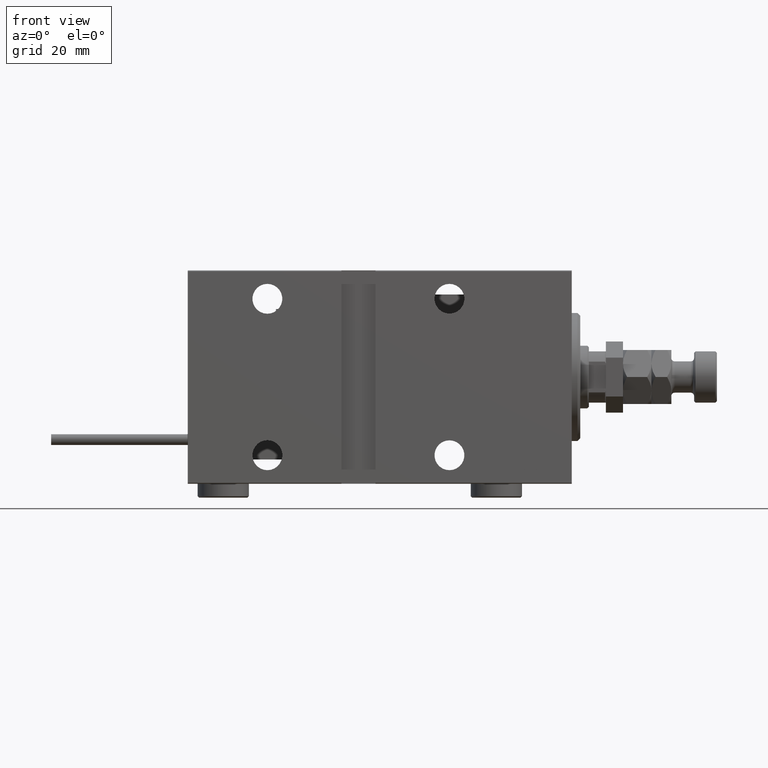
[diagram: clean part render]
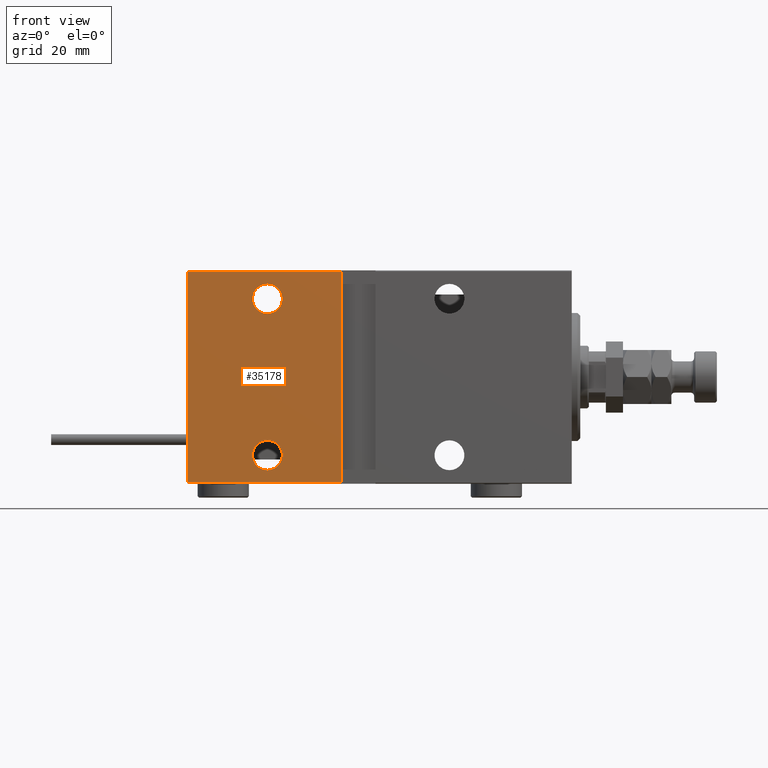
[diagram: same view with one face highlighted and labeled with its STEP entity id]
A machine part, front view. The second image highlights one B-rep face of the part: STEP entity #35178.
In plain terms, the highlighted planar face has unit normal (-0, 1, -0).
Its self-contained STEP definition (entity closure, byte-faithful):
#339 = AXIS2_PLACEMENT_3D ( 'NONE', #4203, #44625, #35800 ) ;
#1992 = CARTESIAN_POINT ( 'NONE',  ( 107.0000000000000142, 27.49999999999999645, 27.49999999999999289 ) ) ;
#2614 = ORIENTED_EDGE ( 'NONE', *, *, #9988, .F. ) ;
#2765 = CARTESIAN_POINT ( 'NONE',  ( 81.00000000000001421, 27.50000000000000355, -37.50000000000009237 ) ) ;
#3240 = EDGE_CURVE ( 'NONE', #4766, #50384, #24701, .T. ) ;
#3502 = VECTOR ( 'NONE', #19582, 1000.000000000000000 ) ;
#3670 = CARTESIAN_POINT ( 'NONE',  ( 107.0000000000000142, 27.49999999999999645, 32.74999999999999289 ) ) ;
#3806 = DIRECTION ( 'NONE',  ( 0.000000000000000000, -1.000000000000000000, -9.251858538542970348E-17 ) ) ;
#3972 = VERTEX_POINT ( 'NONE', #11504 ) ;
#4203 = CARTESIAN_POINT ( 'NONE',  ( 107.0000000000000142, 27.50000000000000355, -27.50000000000000711 ) ) ;
#4766 = VERTEX_POINT ( 'NONE', #3670 ) ;
#5523 = EDGE_CURVE ( 'NONE', #3972, #49125, #8544, .T. ) ;
#6366 = FACE_BOUND ( 'NONE', #42477, .T. ) ;
#6643 = DIRECTION ( 'NONE',  ( 0.000000000000000000, -1.000000000000000000, -9.251858538542970348E-17 ) ) ;
#6654 = EDGE_CURVE ( 'NONE', #50384, #4766, #10201, .T. ) ;
#6917 = CARTESIAN_POINT ( 'NONE',  ( 135.0000000000000000, 27.50000000000000355, -37.50000000000000711 ) ) ;
#7572 = CARTESIAN_POINT ( 'NONE',  ( 107.0000000000000142, 27.49999999999999645, 27.49999999999999289 ) ) ;
#8151 = CARTESIAN_POINT ( 'NONE',  ( 107.0000000000000142, 27.50000000000000355, -32.75000000000000711 ) ) ;
#8531 = AXIS2_PLACEMENT_3D ( 'NONE', #7572, #3806, #16402 ) ;
#8544 = LINE ( 'NONE', #33158, #13849 ) ;
#8896 = CIRCLE ( 'NONE', #339, 5.250000000000000888 ) ;
#9122 = VERTEX_POINT ( 'NONE', #20885 ) ;
#9988 = EDGE_CURVE ( 'NONE', #3972, #52504, #11019, .T. ) ;
#10201 = CIRCLE ( 'NONE', #8531, 5.250000000000004441 ) ;
#10666 = FACE_BOUND ( 'NONE', #29775, .T. ) ;
#11019 = LINE ( 'NONE', #31331, #3502 ) ;
#11504 = CARTESIAN_POINT ( 'NONE',  ( 135.0000000000000000, 27.50000000000000355, -37.19999999999999574 ) ) ;
#12384 = LINE ( 'NONE', #45031, #25184 ) ;
#12799 = ORIENTED_EDGE ( 'NONE', *, *, #3240, .T. ) ;
#13205 = AXIS2_PLACEMENT_3D ( 'NONE', #6917, #6643, #26431 ) ;
#13849 = VECTOR ( 'NONE', #31899, 1000.000000000000000 ) ;
#14049 = ORIENTED_EDGE ( 'NONE', *, *, #34294, .T. ) ;
#16402 = DIRECTION ( 'NONE',  ( 0.000000000000000000, 0.000000000000000000, -1.000000000000000000 ) ) ;
#19582 = DIRECTION ( 'NONE',  ( 0.000000000000000000, -9.251858538542970348E-17, 1.000000000000000000 ) ) ;
#19627 = DIRECTION ( 'NONE',  ( 1.850371707708591851E-16, 9.251858538542959255E-17, -1.000000000000000000 ) ) ;
#20063 = ORIENTED_EDGE ( 'NONE', *, *, #36051, .T. ) ;
#20857 = VERTEX_POINT ( 'NONE', #8151 ) ;
#20885 = CARTESIAN_POINT ( 'NONE',  ( 81.00000000000000000, 27.49999999999999645, 37.20000000000003126 ) ) ;
#22182 = DIRECTION ( 'NONE',  ( 0.000000000000000000, -1.000000000000000000, -9.251858538542970348E-17 ) ) ;
#24701 = CIRCLE ( 'NONE', #41796, 5.250000000000004441 ) ;
#25184 = VECTOR ( 'NONE', #32720, 1000.000000000000000 ) ;
#26431 = DIRECTION ( 'NONE',  ( 0.000000000000000000, 9.251858538542970348E-17, -1.000000000000000000 ) ) ;
#26586 = CARTESIAN_POINT ( 'NONE',  ( 107.0000000000000142, 27.49999999999999645, 22.24999999999998934 ) ) ;
#26975 = FACE_OUTER_BOUND ( 'NONE', #44541, .T. ) ;
#28588 = CARTESIAN_POINT ( 'NONE',  ( 135.0000000000000000, 27.49999999999999645, 37.20000000000002416 ) ) ;
#29775 = EDGE_LOOP ( 'NONE', ( #12799, #32497 ) ) ;
#30410 = ORIENTED_EDGE ( 'NONE', *, *, #31563, .T. ) ;
#31331 = CARTESIAN_POINT ( 'NONE',  ( 135.0000000000000000, 27.50000000000000355, -37.50000000000000711 ) ) ;
#31563 = EDGE_CURVE ( 'NONE', #20857, #45189, #35027, .T. ) ;
#31899 = DIRECTION ( 'NONE',  ( -1.000000000000000000, 0.000000000000000000, 0.000000000000000000 ) ) ;
#32497 = ORIENTED_EDGE ( 'NONE', *, *, #6654, .T. ) ;
#32574 = ORIENTED_EDGE ( 'NONE', *, *, #5523, .T. ) ;
#32720 = DIRECTION ( 'NONE',  ( 1.000000000000000000, 0.000000000000000000, 0.000000000000000000 ) ) ;
#33158 = CARTESIAN_POINT ( 'NONE',  ( 135.0000000000000000, 27.50000000000000355, -37.19999999999999574 ) ) ;
#34294 = EDGE_CURVE ( 'NONE', #45189, #20857, #8896, .T. ) ;
#35027 = CIRCLE ( 'NONE', #50441, 5.250000000000000888 ) ;
#35178 = ADVANCED_FACE ( 'NONE', ( #6366, #10666, #26975 ), #43303, .F. ) ;
#35800 = DIRECTION ( 'NONE',  ( 0.000000000000000000, 0.000000000000000000, -1.000000000000000000 ) ) ;
#36051 = EDGE_CURVE ( 'NONE', #9122, #52504, #12384, .T. ) ;
#37374 = EDGE_CURVE ( 'NONE', #9122, #49125, #42905, .T. ) ;
#37410 = CARTESIAN_POINT ( 'NONE',  ( 107.0000000000000142, 27.50000000000000355, -22.25000000000000355 ) ) ;
#38504 = DIRECTION ( 'NONE',  ( 0.000000000000000000, 0.000000000000000000, -1.000000000000000000 ) ) ;
#40404 = ORIENTED_EDGE ( 'NONE', *, *, #37374, .F. ) ;
#41796 = AXIS2_PLACEMENT_3D ( 'NONE', #1992, #48015, #51228 ) ;
#42477 = EDGE_LOOP ( 'NONE', ( #14049, #30410 ) ) ;
#42905 = LINE ( 'NONE', #2765, #52585 ) ;
#43050 = CARTESIAN_POINT ( 'NONE',  ( 107.0000000000000142, 27.50000000000000355, -27.50000000000000711 ) ) ;
#43303 = PLANE ( 'NONE',  #13205 ) ;
#44541 = EDGE_LOOP ( 'NONE', ( #2614, #32574, #40404, #20063 ) ) ;
#44625 = DIRECTION ( 'NONE',  ( 0.000000000000000000, -1.000000000000000000, -9.251858538542970348E-17 ) ) ;
#45031 = CARTESIAN_POINT ( 'NONE',  ( 135.0000000000000000, 27.49999999999999645, 37.20000000000002416 ) ) ;
#45189 = VERTEX_POINT ( 'NONE', #37410 ) ;
#48015 = DIRECTION ( 'NONE',  ( 0.000000000000000000, -1.000000000000000000, -9.251858538542970348E-17 ) ) ;
#49125 = VERTEX_POINT ( 'NONE', #49427 ) ;
#49427 = CARTESIAN_POINT ( 'NONE',  ( 81.00000000000001421, 27.50000000000000355, -37.19999999999999574 ) ) ;
#50384 = VERTEX_POINT ( 'NONE', #26586 ) ;
#50441 = AXIS2_PLACEMENT_3D ( 'NONE', #43050, #22182, #38504 ) ;
#51228 = DIRECTION ( 'NONE',  ( 0.000000000000000000, 0.000000000000000000, -1.000000000000000000 ) ) ;
#52504 = VERTEX_POINT ( 'NONE', #28588 ) ;
#52585 = VECTOR ( 'NONE', #19627, 1000.000000000000000 ) ;